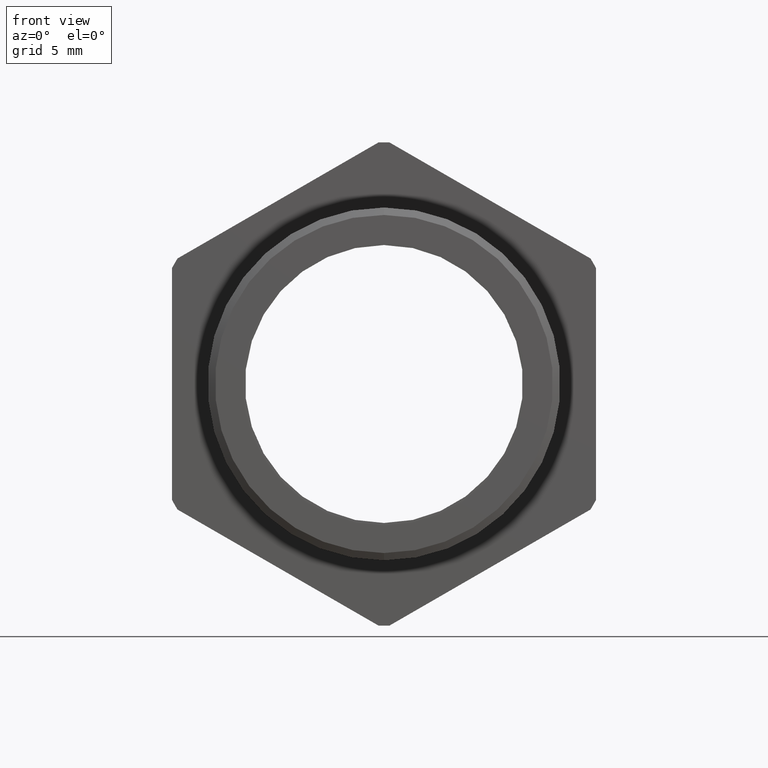
[diagram: clean part render]
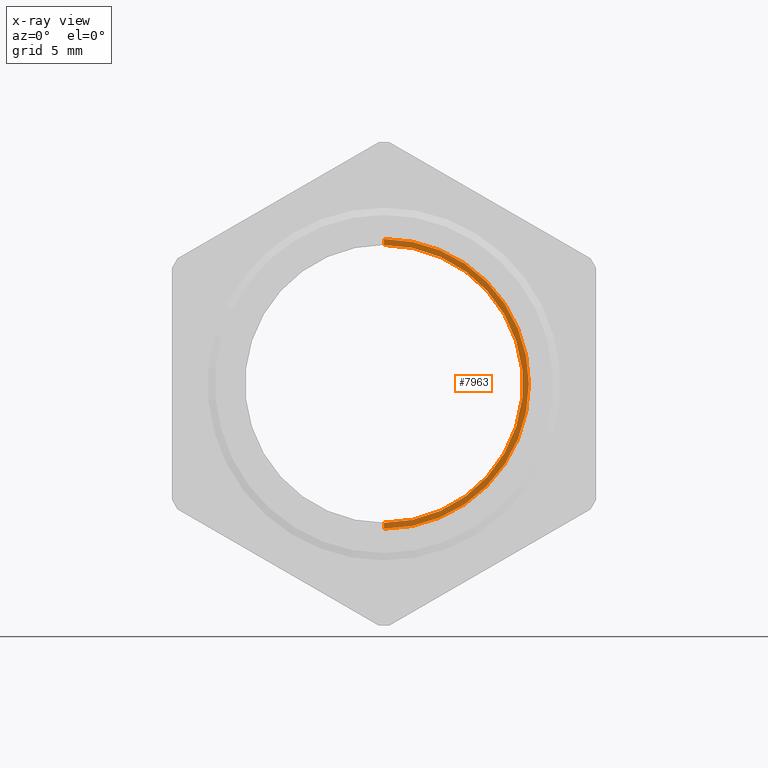
[diagram: x-ray — body ghosted, one internal face saturated and labeled with its STEP entity id]
A machine part, front view, then the same camera in x-ray: the body is ghosted and one INTERNAL B-rep face — a face not visible from any outside direction — is saturated and labeled: STEP entity #7963.
In plain terms, the highlighted conical surface has half-angle 88.312 deg.
Its self-contained STEP definition (entity closure, byte-faithful):
#340 = DIRECTION ( 'NONE',  ( 0.0000000000000000000, 0.0000000000000000000, -1.000000000000000000 ) ) ;
#341 = DIRECTION ( 'NONE',  ( -0.0000000000000000000, 1.000000000000000000, -0.0000000000000000000 ) ) ;
#342 = CARTESIAN_POINT ( 'NONE',  ( 0.0000000000000000000, 0.3742219653570459900, 0.0000000000000000000 ) ) ;
#343 = AXIS2_PLACEMENT_3D ( 'NONE', #342, #341, #340 ) ;
#344 = CIRCLE ( 'NONE', #343, 0.2589880461203001900 ) ;
#503 = DIRECTION ( 'NONE',  ( 0.0000000000000000000, 0.0000000000000000000, 1.000000000000000000 ) ) ;
#504 = DIRECTION ( 'NONE',  ( -0.0000000000000000000, 1.000000000000000000, -0.0000000000000000000 ) ) ;
#505 = CARTESIAN_POINT ( 'NONE',  ( 0.0000000000000000000, 0.3738999999999996800, 0.0000000000000000000 ) ) ;
#506 = AXIS2_PLACEMENT_3D ( 'NONE', #505, #504, #503 ) ;
#507 = CIRCLE ( 'NONE', #506, 0.2699131668257122000 ) ;
#2778 = DIRECTION ( 'NONE',  ( 0.0000000000000000000, 0.0000000000000000000, -1.000000000000000000 ) ) ;
#2779 = DIRECTION ( 'NONE',  ( 0.0000000000000000000, -1.000000000000000000, 0.0000000000000000000 ) ) ;
#2780 = CARTESIAN_POINT ( 'NONE',  ( 0.0000000000000000000, 0.3747992980933291300, 0.0000000000000000000 ) ) ;
#2781 = AXIS2_PLACEMENT_3D ( 'NONE', #2780, #2779, #2778 ) ;
#2783 = CONICAL_SURFACE ( 'NONE', #2781, 0.2393976470508425700, 1.541334666264296200 ) ;
#2784 = FACE_OUTER_BOUND ( 'NONE', #7954, .T. ) ;
#4977 = VERTEX_POINT ( 'NONE', #8824 ) ;
#4978 = VERTEX_POINT ( 'NONE', #8823 ) ;
#4993 = VERTEX_POINT ( 'NONE', #8853 ) ;
#5011 = EDGE_CURVE ( 'NONE', #4993, #4978, #8938, .T. ) ;
#5017 = VERTEX_POINT ( 'NONE', #8930 ) ;
#5050 = EDGE_CURVE ( 'NONE', #5017, #4977, #8988, .T. ) ;
#5460 = EDGE_CURVE ( 'NONE', #4993, #5017, #344, .T. ) ;
#5557 = EDGE_CURVE ( 'NONE', #4978, #4977, #507, .T. ) ;
#5558 = ORIENTED_EDGE ( 'NONE', *, *, #5557, .F. ) ;
#7945 = ORIENTED_EDGE ( 'NONE', *, *, #5050, .T. ) ;
#7954 = EDGE_LOOP ( 'NONE', ( #7955, #7957, #7945, #5558 ) ) ;
#7955 = ORIENTED_EDGE ( 'NONE', *, *, #5011, .F. ) ;
#7957 = ORIENTED_EDGE ( 'NONE', *, *, #5460, .T. ) ;
#7963 = ADVANCED_FACE ( 'NONE', ( #2784 ), #2783, .F. ) ;
#8823 = CARTESIAN_POINT ( 'NONE',  ( 3.305482958008340700E-017, 0.3738999999999996800, 0.2699131668257122600 ) ) ;
#8824 = CARTESIAN_POINT ( 'NONE',  ( 0.0000000000000000000, 0.3738999999999996800, -0.2699131668257122600 ) ) ;
#8853 = CARTESIAN_POINT ( 'NONE',  ( 3.171688816986526800E-017, 0.3742219653570459900, 0.2589880461203001900 ) ) ;
#8930 = CARTESIAN_POINT ( 'NONE',  ( 0.0000000000000000000, 0.3742219653570459900, -0.2589880461203001900 ) ) ;
#8935 = DIRECTION ( 'NONE',  ( 1.224115347344792500E-016, -0.02945739864719126200, 0.9995660366703845700 ) ) ;
#8936 = VECTOR ( 'NONE', #8935, 39.37007874015747400 ) ;
#8937 = CARTESIAN_POINT ( 'NONE',  ( 2.931775621842221100E-017, 0.3747992980933291300, 0.2393976470508425700 ) ) ;
#8938 = LINE ( 'NONE', #8937, #8936 ) ;
#8985 = DIRECTION ( 'NONE',  ( 0.0000000000000000000, -0.02945739864719126200, -0.9995660366703845700 ) ) ;
#8986 = VECTOR ( 'NONE', #8985, 39.37007874015747400 ) ;
#8987 = CARTESIAN_POINT ( 'NONE',  ( 0.0000000000000000000, 0.3747992980933291300, -0.2393976470508425700 ) ) ;
#8988 = LINE ( 'NONE', #8987, #8986 ) ;